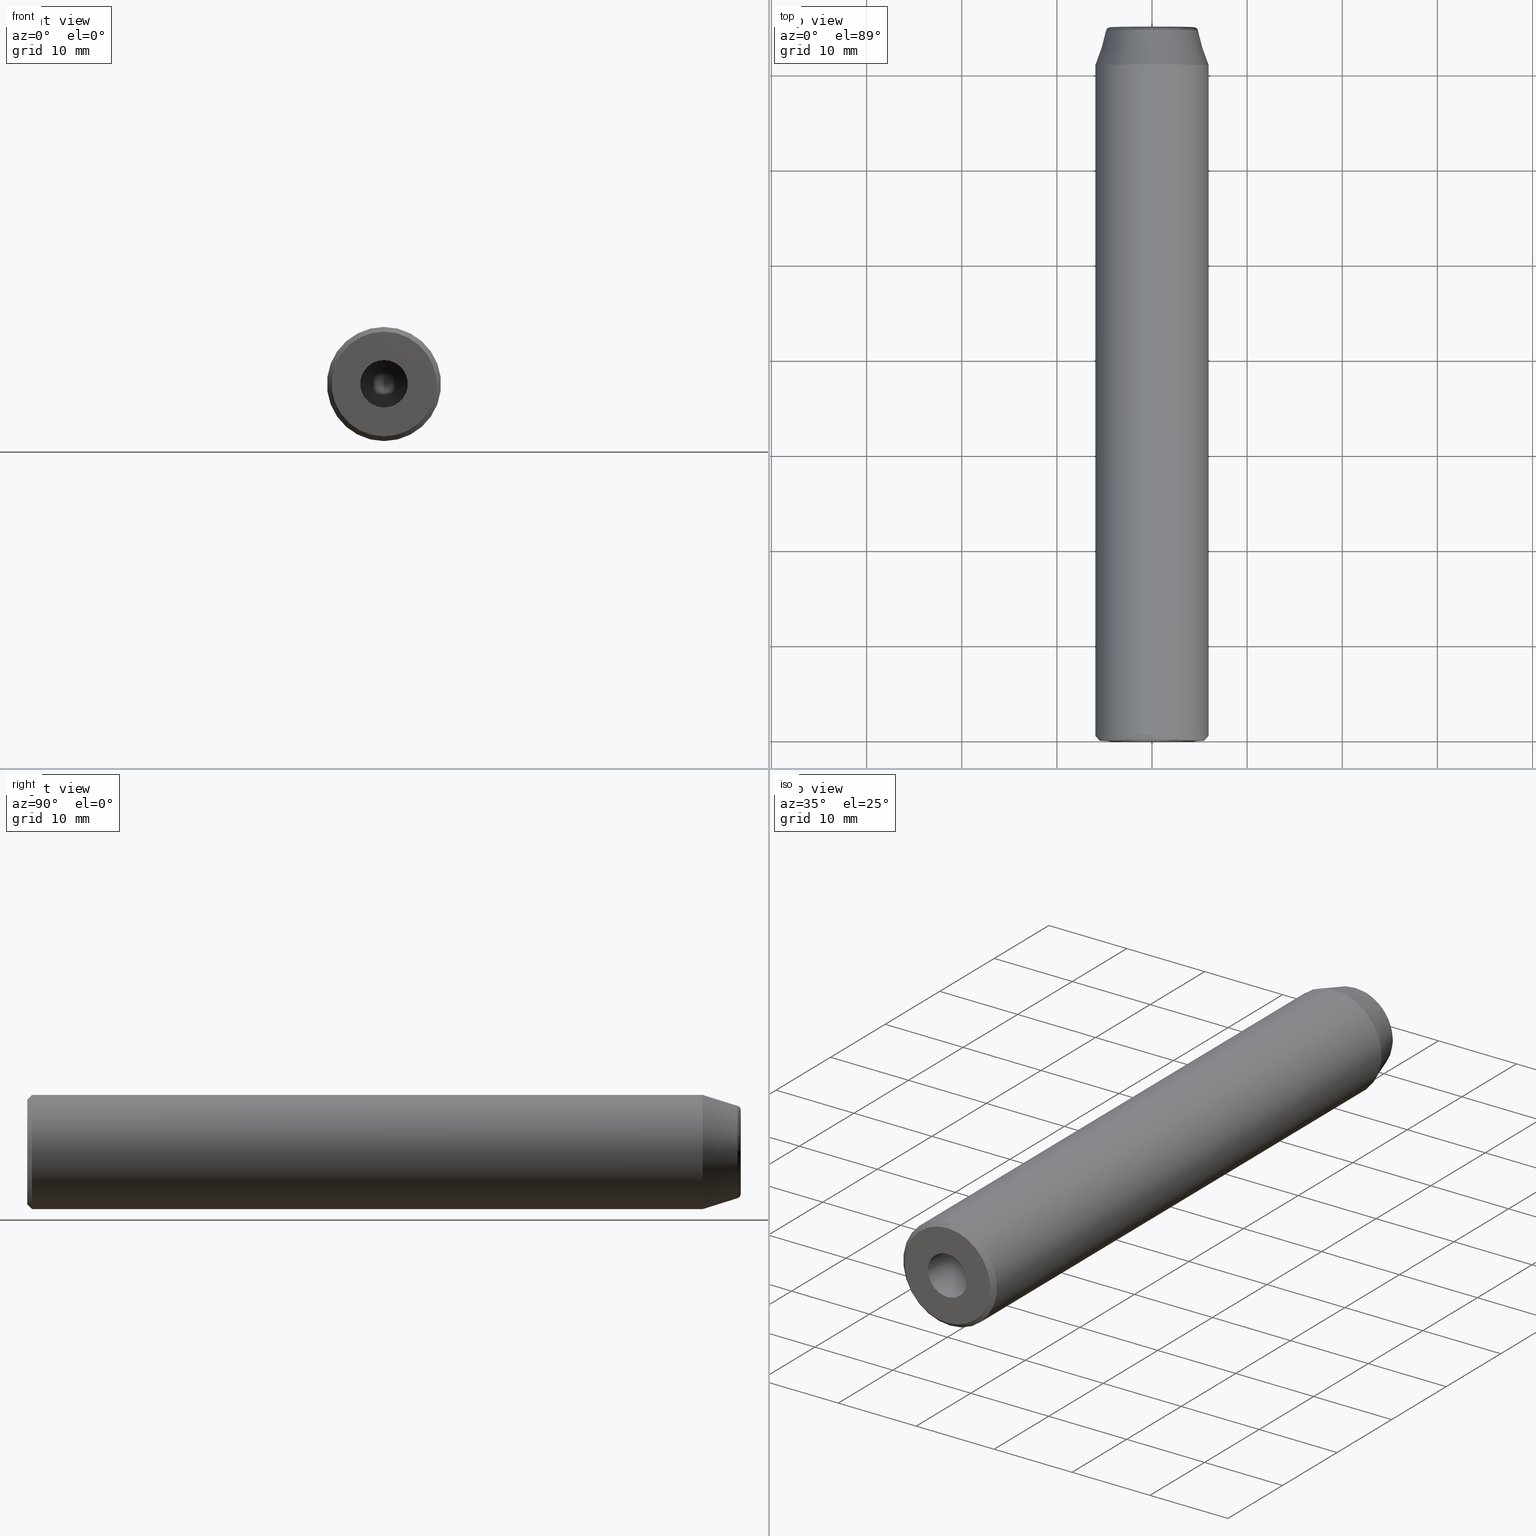
[diagram: canonical four-view strip — front | top / right | iso, engineering-drawing reading convention]
A machine part, canonical four-view strip (front | top / right | iso — engineering-drawing reading convention). The complete STEP part file that produces these views, byte-faithful:
ISO-10303-21;
HEADER;
FILE_DESCRIPTION (( 'STEP AP203' ),
    '1' );
FILE_NAME ('524210.STEP',
    '2024-06-12T02:01:58',
    ( 'Windows User' ),
    ( 'P R C' ),
    'SwSTEP 2.0',
    'SolidWorks 2020',
    '' );
FILE_SCHEMA (( 'CONFIG_CONTROL_DESIGN' ));
ENDSEC;

DATA;
#1 = AXIS2_PLACEMENT_3D ( 'NONE', #150, #300, #232 ) ;
#2 = ORIENTED_EDGE ( 'NONE', *, *, #70, .F. ) ;
#3 = DIRECTION ( 'NONE',  ( 1.000000000000000000, 0.000000000000000000, 0.000000000000000000 ) ) ;
#4 = DATE_TIME_ROLE ( 'classification_date' ) ;
#5 = ADVANCED_FACE ( 'NONE', ( #305, #85 ), #189, .T. ) ;
#6 = APPROVAL_STATUS ( 'not_yet_approved' ) ;
#7 = CARTESIAN_POINT ( 'NONE',  ( 0.000000000000000000, 0.5000000000000004441, 0.000000000000000000 ) ) ;
#8 = CIRCLE ( 'NONE', #188, 4.859644532331230948 ) ;
#9 = FACE_BOUND ( 'NONE', #113, .T. ) ;
#10 = FACE_OUTER_BOUND ( 'NONE', #219, .T. ) ;
#11 = DIRECTION ( 'NONE',  ( 0.000000000000000000, 0.000000000000000000, 1.000000000000000000 ) ) ;
#12 = CARTESIAN_POINT ( 'NONE',  ( 0.000000000000000000, 64.90000000000000568, 0.000000000000000000 ) ) ;
#13 = ORIENTED_EDGE ( 'NONE', *, *, #61, .F. ) ;
#14 = FACE_OUTER_BOUND ( 'NONE', #152, .T. ) ;
#15 = ORIENTED_EDGE ( 'NONE', *, *, #302, .T. ) ;
#16 = CC_DESIGN_SECURITY_CLASSIFICATION ( #169, ( #52 ) ) ;
#17 = CARTESIAN_POINT ( 'NONE',  ( 0.000000000000000000, 75.00000000000000000, 4.609233332234357938 ) ) ;
#18 = APPROVAL_STATUS ( 'not_yet_approved' ) ;
#19 = PERSON_AND_ORGANIZATION ( #264, #66 ) ;
#20 = CIRCLE ( 'NONE', #291, 5.500000000040472514 ) ;
#21 = APPROVAL_ROLE ( '' ) ;
#22 = ORIENTED_EDGE ( 'NONE', *, *, #168, .T. ) ;
#23 = EDGE_LOOP ( 'NONE', ( #179 ) ) ;
#24 =( NAMED_UNIT ( * ) PLANE_ANGLE_UNIT ( ) SI_UNIT ( $, .RADIAN. ) );
#25 = APPROVAL_DATE_TIME ( #115, #248 ) ;
#26 = PRODUCT_DEFINITION ( 'δ֪', '', #52, #160 ) ;
#27 = CIRCLE ( 'NONE', #36, 2.499999999999998224 ) ;
#28 = DATE_AND_TIME ( #99, #203 ) ;
#29 = EDGE_LOOP ( 'NONE', ( #22 ) ) ;
#30 = APPROVAL_ROLE ( '' ) ;
#31 = EDGE_CURVE ( 'NONE', #308, #308, #8, .T. ) ;
#32 = CARTESIAN_POINT ( 'NONE',  ( 5.483787781522369726E-16, 75.00000000000001421, -4.382404543304999400 ) ) ;
#33 = CARTESIAN_POINT ( 'NONE',  ( 0.000000000000000000, 74.64913749651297792, 4.859644532339705059 ) ) ;
#34 = APPROVAL ( #6, 'δָ��' ) ;
#35 = DIRECTION ( 'NONE',  ( 0.000000000000000000, -1.000000000000000000, 0.000000000000000000 ) ) ;
#36 = AXIS2_PLACEMENT_3D ( 'NONE', #246, #142, #247 ) ;
#37 = FACE_OUTER_BOUND ( 'NONE', #243, .T. ) ;
#38 = UNCERTAINTY_MEASURE_WITH_UNIT (LENGTH_MEASURE( 1.000000000000000082E-05 ), #239, 'distance_accuracy_value', 'NONE');
#39 = EDGE_CURVE ( 'NONE', #211, #211, #27, .T. ) ;
#40 = DIRECTION ( 'NONE',  ( -0.000000000000000000, -1.000000000000000000, -0.000000000000000000 ) ) ;
#41 = CARTESIAN_POINT ( 'NONE',  ( 0.000000000000000000, 0.000000000000000000, 0.000000000000000000 ) ) ;
#42 = DIRECTION ( 'NONE',  ( 0.000000000000000000, 1.000000000000000000, 0.000000000000000000 ) ) ;
#43 = LOCAL_TIME ( 10, 1, 58.00000000000000000, #96 ) ;
#44 = DIRECTION ( 'NONE',  ( 0.000000000000000000, 1.000000000000000000, 0.000000000000000000 ) ) ;
#45 = COORDINATED_UNIVERSAL_TIME_OFFSET ( 8, 0, .AHEAD. ) ;
#46 = EDGE_LOOP ( 'NONE', ( #131 ) ) ;
#47 = APPROVAL_STATUS ( 'not_yet_approved' ) ;
#48 = ADVANCED_FACE ( 'NONE', ( #231, #223 ), #254, .T. ) ;
#49 = VERTEX_POINT ( 'NONE', #284 ) ;
#50 = CARTESIAN_POINT ( 'NONE',  ( 0.000000000000000000, 74.64913749651032049, -4.859644532331230948 ) ) ;
#51 = CC_DESIGN_PERSON_AND_ORGANIZATION_ASSIGNMENT ( #218, #117, ( #52 ) ) ;
#52 = PRODUCT_DEFINITION_FORMATION_WITH_SPECIFIED_SOURCE ( '�κ�', '', #285, .NOT_KNOWN. ) ;
#53 = ORIENTED_EDGE ( 'NONE', *, *, #39, .F. ) ;
#54 = ORIENTED_EDGE ( 'NONE', *, *, #302, .F. ) ;
#55 = EDGE_LOOP ( 'NONE', ( #77 ) ) ;
#56 = AXIS2_PLACEMENT_3D ( 'NONE', #41, #124, #230 ) ;
#57 = DIRECTION ( 'NONE',  ( 0.000000000000000000, 0.000000000000000000, -1.000000000000000000 ) ) ;
#58 = PERSON_AND_ORGANIZATION ( #264, #66 ) ;
#59 = CARTESIAN_POINT ( 'NONE',  ( 0.000000000000000000, 75.00000000000001421, 0.000000000000000000 ) ) ;
#60 = DIRECTION ( 'NONE',  ( 0.000000000000000000, 0.000000000000000000, -1.000000000000000000 ) ) ;
#61 = EDGE_CURVE ( 'NONE', #89, #89, #20, .T. ) ;
#62 = CARTESIAN_POINT ( 'NONE',  ( 0.000000000000000000, 0.5000000001018634066, 0.000000000000000000 ) ) ;
#63 = CARTESIAN_POINT ( 'NONE',  ( 0.000000000000000000, 75.00000000000001421, 0.000000000000000000 ) ) ;
#64 = CARTESIAN_POINT ( 'NONE',  ( -9.583974353807441560, 74.86564103399577164, -4.791987176903720780 ) ) ;
#65 = DIRECTION ( 'NONE',  ( 0.000000000000000000, 0.000000000000000000, -1.000000000000000000 ) ) ;
#66 = ORGANIZATION ( 'δָ��', 'δָ��', '' ) ;
#67 = CARTESIAN_POINT ( 'NONE',  ( 9.583974353807441560, 74.86564103399577164, -4.791987176903720780 ) ) ;
#68 = CARTESIAN_POINT ( 'NONE',  ( -8.764809086609998801, 75.00000000000000000, 4.382404543304999400 ) ) ;
#69 = AXIS2_PLACEMENT_3D ( 'NONE', #59, #40, #128 ) ;
#70 = EDGE_CURVE ( 'NONE', #94, #74, #236, .T. ) ;
#71 = COORDINATED_UNIVERSAL_TIME_OFFSET ( 8, 0, .AHEAD. ) ;
#72 = MECHANICAL_CONTEXT ( 'NONE', #190, 'mechanical' ) ;
#73 = APPROVAL_DATE_TIME ( #122, #260 ) ;
#74 = VERTEX_POINT ( 'NONE', #273 ) ;
#75 = MANIFOLD_SOLID_BREP ( '���1', #221 ) ;
#76 = AXIS2_PLACEMENT_3D ( 'NONE', #275, #35, #149 ) ;
#77 = ORIENTED_EDGE ( 'NONE', *, *, #145, .T. ) ;
#78 = CIRCLE ( 'NONE', #92, 1.649999999999998579 ) ;
#79 = CC_DESIGN_PERSON_AND_ORGANIZATION_ASSIGNMENT ( #19, #216, ( #285 ) ) ;
#80 = CARTESIAN_POINT ( 'NONE',  ( 0.000000000000000000, 71.00000000007185008, 0.000000000000000000 ) ) ;
#81 = FACE_OUTER_BOUND ( 'NONE', #112, .T. ) ;
#82 = DIRECTION ( 'NONE',  ( 0.000000000000000000, 0.000000000000000000, 1.000000000000000000 ) ) ;
#83 = CARTESIAN_POINT ( 'NONE',  ( -8.764809086609998801, 75.00000000000000000, -4.382404543304999400 ) ) ;
#84 = CARTESIAN_POINT ( 'NONE',  ( -9.583974353807441560, 74.86564103399577164, 4.791987176903720780 ) ) ;
#85 = FACE_OUTER_BOUND ( 'NONE', #207, .T. ) ;
#86 = CARTESIAN_POINT ( 'NONE',  ( -9.218466664468715877, 75.00000000000001421, 4.609233332234357938 ) ) ;
#87 = CARTESIAN_POINT ( 'NONE',  ( 0.000000000000000000, 70.99999999999998579, -6.000000000000000888 ) ) ;
#88 = CONICAL_SURFACE ( 'NONE', #76, 2.499999999997726263, 1.029744258685237446 ) ;
#89 = VERTEX_POINT ( 'NONE', #158 ) ;
#90 = EDGE_CURVE ( 'NONE', #74, #94, #290, .T. ) ;
#91 =( NAMED_UNIT ( * ) SI_UNIT ( $, .STERADIAN. ) SOLID_ANGLE_UNIT ( ) );
#92 = AXIS2_PLACEMENT_3D ( 'NONE', #12, #178, #135 ) ;
#93 = EDGE_LOOP ( 'NONE', ( #114 ) ) ;
#94 = VERTEX_POINT ( 'NONE', #225 ) ;
#95 = APPLICATION_PROTOCOL_DEFINITION ( 'international standard', 'config_control_design', 1994, #190 ) ;
#96 = COORDINATED_UNIVERSAL_TIME_OFFSET ( 8, 0, .AHEAD. ) ;
#97 = ORIENTED_EDGE ( 'NONE', *, *, #270, .F. ) ;
#98 = ORIENTED_EDGE ( 'NONE', *, *, #90, .F. ) ;
#99 = CALENDAR_DATE ( 2024, 12, 6 ) ;
#100 = LOCAL_TIME ( 10, 1, 58.00000000000000000, #71 ) ;
#101 = PRODUCT_RELATED_PRODUCT_CATEGORY ( 'detail', '', ( #285 ) ) ;
#102 = AXIS2_PLACEMENT_3D ( 'NONE', #123, #130, #205 ) ;
#103 = FACE_OUTER_BOUND ( 'NONE', #257, .T. ) ;
#104 = FACE_BOUND ( 'NONE', #155, .T. ) ;
#105 = DIRECTION ( 'NONE',  ( 0.000000000000000000, -1.000000000000000000, 0.000000000000000000 ) ) ;
#106 = DIRECTION ( 'NONE',  ( 0.000000000000000000, 1.000000000000000000, 0.000000000000000000 ) ) ;
#107 = CARTESIAN_POINT ( 'NONE',  ( 0.000000000000000000, 74.86564103399577164, -4.791987176903720780 ) ) ;
#108 = FACE_OUTER_BOUND ( 'NONE', #162, .T. ) ;
#109 = CC_DESIGN_PERSON_AND_ORGANIZATION_ASSIGNMENT ( #185, #120, ( #52 ) ) ;
#110 = CARTESIAN_POINT ( 'NONE',  ( 0.000000000000000000, 1.040949779275260987E-16, -2.499999999999998224 ) ) ;
#111 = CIRCLE ( 'NONE', #148, 6.000000000000000888 ) ;
#112 = EDGE_LOOP ( 'NONE', ( #97 ) ) ;
#113 = EDGE_LOOP ( 'NONE', ( #53 ) ) ;
#114 = ORIENTED_EDGE ( 'NONE', *, *, #168, .F. ) ;
#115 = DATE_AND_TIME ( #265, #100 ) ;
#116 = PRODUCT_DEFINITION_SHAPE ( 'NONE', 'NONE',  #26 ) ;
#117 = PERSON_AND_ORGANIZATION_ROLE ( 'creator' ) ;
#118 = ORIENTED_EDGE ( 'NONE', *, *, #293, .F. ) ;
#119 = APPROVAL_DATE_TIME ( #28, #34 ) ;
#120 = PERSON_AND_ORGANIZATION_ROLE ( 'design_supplier' ) ;
#121 = LOCAL_TIME ( 10, 1, 58.00000000000000000, #222 ) ;
#122 = DATE_AND_TIME ( #187, #43 ) ;
#123 = CARTESIAN_POINT ( 'NONE',  ( 0.000000000000000000, 64.89999999989777280, 0.000000000000000000 ) ) ;
#124 = DIRECTION ( 'NONE',  ( -0.000000000000000000, -1.000000000000000000, -0.000000000000000000 ) ) ;
#125 = AXIS2_PLACEMENT_3D ( 'NONE', #63, #42, #202 ) ;
#126 = ADVANCED_FACE ( 'NONE', ( #103, #195 ), #307, .T. ) ;
#127 = CYLINDRICAL_SURFACE ( 'NONE', #56, 2.499999999999998224 ) ;
#128 = DIRECTION ( 'NONE',  ( 0.000000000000000000, 0.000000000000000000, 1.000000000000000000 ) ) ;
#129 = PLANE ( 'NONE',  #214 ) ;
#130 = DIRECTION ( 'NONE',  ( -0.000000000000000000, 1.000000000000000000, 0.000000000000000000 ) ) ;
#131 = ORIENTED_EDGE ( 'NONE', *, *, #31, .T. ) ;
#132 = CARTESIAN_POINT ( 'NONE',  ( 0.000000000000000000, 75.00000000000001421, 0.000000000000000000 ) ) ;
#133 = DATE_TIME_ROLE ( 'creation_date' ) ;
#134 = DIRECTION ( 'NONE',  ( 0.000000000000000000, 0.000000000000000000, 1.000000000000000000 ) ) ;
#135 = DIRECTION ( 'NONE',  ( 0.000000000000000000, 0.000000000000000000, 1.000000000000000000 ) ) ;
#136 = CARTESIAN_POINT ( 'NONE',  ( 0.000000000000000000, 11.00000000000000000, -2.499999999999998224 ) ) ;
#137 = CIRCLE ( 'NONE', #1, 2.499999999999998224 ) ;
#138 = CC_DESIGN_APPROVAL ( #260, ( #52 ) ) ;
#139 = CC_DESIGN_DATE_AND_TIME_ASSIGNMENT ( #296, #4, ( #169 ) ) ;
#140 = EDGE_LOOP ( 'NONE', ( #184, #261 ) ) ;
#141 = ADVANCED_FACE ( 'NONE', ( #10 ), #88, .F. ) ;
#142 = DIRECTION ( 'NONE',  ( -0.000000000000000000, -1.000000000000000000, -0.000000000000000000 ) ) ;
#143 = CC_DESIGN_APPROVAL ( #34, ( #169 ) ) ;
#144 = CARTESIAN_POINT ( 'NONE',  ( -8.764809086609997024, 75.00000000000000000, 4.382404543304999400 ) ) ;
#145 = EDGE_CURVE ( 'NONE', #286, #286, #111, .T. ) ;
#146 = CARTESIAN_POINT ( 'NONE',  ( 8.764809086609997024, 75.00000000000000000, -4.382404543304998512 ) ) ;
#147 = CARTESIAN_POINT ( 'NONE',  ( 0.000000000000000000, 74.86564103399577164, 4.791987176903720780 ) ) ;
#148 = AXIS2_PLACEMENT_3D ( 'NONE', #7, #228, #164 ) ;
#149 = DIRECTION ( 'NONE',  ( 0.000000000000000000, 0.000000000000000000, -1.000000000000000000 ) ) ;
#150 = CARTESIAN_POINT ( 'NONE',  ( 0.000000000000000000, 11.00000000000000000, 0.000000000000000000 ) ) ;
#151 =( GEOMETRIC_REPRESENTATION_CONTEXT ( 3 ) GLOBAL_UNCERTAINTY_ASSIGNED_CONTEXT ( ( #38 ) ) GLOBAL_UNIT_ASSIGNED_CONTEXT ( ( #239, #24, #91 ) ) REPRESENTATION_CONTEXT ( 'NONE', 'WORKASPACE' ) );
#152 = EDGE_LOOP ( 'NONE', ( #288 ) ) ;
#153 = CARTESIAN_POINT ( 'NONE',  ( 0.000000000000000000, 74.86564103399577164, 4.791987176903720780 ) ) ;
#154 = CARTESIAN_POINT ( 'NONE',  ( 0.000000000000000000, 75.00000000000001421, -4.382404543304999400 ) ) ;
#155 = EDGE_LOOP ( 'NONE', ( #268 ) ) ;
#156 = CARTESIAN_POINT ( 'NONE',  ( 0.000000000000000000, 0.5000000000000004441, -6.000000000000000888 ) ) ;
#157 = PERSON_AND_ORGANIZATION_ROLE ( 'creator' ) ;
#158 = CARTESIAN_POINT ( 'NONE',  ( 0.000000000000000000, 0.000000000000000000, 5.500000000040472514 ) ) ;
#159 = APPLICATION_PROTOCOL_DEFINITION ( 'international standard', 'config_control_design', 1994, #215 ) ;
#160 = DESIGN_CONTEXT ( 'detailed design', #215, 'design' ) ;
#161 = CC_DESIGN_PERSON_AND_ORGANIZATION_ASSIGNMENT ( #237, #157, ( #26 ) ) ;
#162 = EDGE_LOOP ( 'NONE', ( #13 ) ) ;
#163 = AXIS2_PLACEMENT_3D ( 'NONE', #181, #134, #3 ) ;
#164 = DIRECTION ( 'NONE',  ( 0.000000000000000000, 0.000000000000000000, -1.000000000000000000 ) ) ;
#165 = CARTESIAN_POINT ( 'NONE',  ( 0.000000000000000000, 75.00000000000001421, 4.382404543304999400 ) ) ;
#166 = CARTESIAN_POINT ( 'NONE',  ( 0.000000000000000000, 0.000000000000000000, 0.000000000000000000 ) ) ;
#167 = DIRECTION ( 'NONE',  ( 0.000000000000000000, -0.000000000000000000, 1.000000000000000000 ) ) ;
#168 = EDGE_CURVE ( 'NONE', #49, #49, #194, .T. ) ;
#169 = SECURITY_CLASSIFICATION ( '', '', #191 ) ;
#170 = CARTESIAN_POINT ( 'NONE',  ( 9.218466664468715877, 75.00000000000001421, -4.609233332234357938 ) ) ;
#171 = CARTESIAN_POINT ( 'NONE',  ( 9.218466664468715877, 75.00000000000001421, 4.609233332234357938 ) ) ;
#172 =( BOUNDED_SURFACE ( )  B_SPLINE_SURFACE ( 3, 3, ( 
 ( #226, #233, #303, #154, #83, #68, #298 ),
 ( #17, #171, #170, #278, #197, #86, #281 ),
 ( #147, #199, #67, #107, #64, #84, #153 ),
 ( #304, #251, #253, #201, #258, #174, #33 ) ),
 .UNSPECIFIED., .F., .T., .F. ) 
 B_SPLINE_SURFACE_WITH_KNOTS ( ( 4, 4 ),
 ( 4, 3, 4 ),
 ( 0.000000000000000000, 1.000000000000000000 ),
 ( 0.000000000000000000, 0.5000000000000000000, 1.000000000000000000 ),
 .UNSPECIFIED. ) 
 GEOMETRIC_REPRESENTATION_ITEM ( )  RATIONAL_B_SPLINE_SURFACE ( (
 ( 1.000000000000000000, 0.3333333333333333148, 0.3333333333333333148, 1.000000000000000000, 0.3333333333333333148, 0.3333333333333333148, 1.000000000000000000),
 ( 0.8704604635415936764, 0.2901534878471978551, 0.2901534878471978551, 0.8704604635415936764, 0.2901534878471978551, 0.2901534878471978551, 0.8704604635415936764),
 ( 0.8704604635415936764, 0.2901534878471978551, 0.2901534878471978551, 0.8704604635415936764, 0.2901534878471978551, 0.2901534878471978551, 0.8704604635415936764),
 ( 1.000000000000000000, 0.3333333333333333148, 0.3333333333333333148, 1.000000000000000000, 0.3333333333333333148, 0.3333333333333333148, 1.000000000000000000) ) ) 
 REPRESENTATION_ITEM ( '' )  SURFACE ( )  );
#173 = CC_DESIGN_APPROVAL ( #248, ( #26 ) ) ;
#174 = CARTESIAN_POINT ( 'NONE',  ( -9.719289064679410117, 74.64913749651297792, 4.859644532339705059 ) ) ;
#175 = CARTESIAN_POINT ( 'NONE',  ( 0.000000000000000000, 74.64913749651032049, 0.000000000000000000 ) ) ;
#176 = DIRECTION ( 'NONE',  ( -0.000000000000000000, -1.000000000000000000, -0.000000000000000000 ) ) ;
#177 = ADVANCED_FACE ( 'NONE', ( #249 ), #242, .F. ) ;
#178 = DIRECTION ( 'NONE',  ( 0.000000000000000000, 1.000000000000000000, 0.000000000000000000 ) ) ;
#179 = ORIENTED_EDGE ( 'NONE', *, *, #293, .T. ) ;
#180 = ADVANCED_FACE ( 'NONE', ( #204, #37 ), #255, .F. ) ;
#181 = CARTESIAN_POINT ( 'NONE',  ( 0.000000000000000000, 0.000000000000000000, 0.000000000000000000 ) ) ;
#182 = ORIENTED_EDGE ( 'NONE', *, *, #39, .T. ) ;
#183 = DATE_AND_TIME ( #217, #295 ) ;
#184 = ORIENTED_EDGE ( 'NONE', *, *, #90, .T. ) ;
#185 = PERSON_AND_ORGANIZATION ( #264, #66 ) ;
#186 = ADVANCED_BREP_SHAPE_REPRESENTATION ( '524210', ( #75, #163 ), #151 ) ;
#187 = CALENDAR_DATE ( 2024, 12, 6 ) ;
#188 = AXIS2_PLACEMENT_3D ( 'NONE', #175, #282, #65 ) ;
#189 = CYLINDRICAL_SURFACE ( 'NONE', #209, 6.000000000000000888 ) ;
#190 = APPLICATION_CONTEXT ( 'configuration controlled 3d designs of mechanical parts and assemblies' ) ;
#191 = SECURITY_CLASSIFICATION_LEVEL ( 'unclassified' ) ;
#192 = AXIS2_PLACEMENT_3D ( 'NONE', #235, #176, #241 ) ;
#193 = CALENDAR_DATE ( 2024, 12, 6 ) ;
#194 = CIRCLE ( 'NONE', #69, 1.649999999999998579 ) ;
#195 = FACE_BOUND ( 'NONE', #46, .T. ) ;
#196 = CC_DESIGN_PERSON_AND_ORGANIZATION_ASSIGNMENT ( #292, #294, ( #169 ) ) ;
#197 = CARTESIAN_POINT ( 'NONE',  ( -9.218466664468715877, 75.00000000000001421, -4.609233332234357938 ) ) ;
#198 = DIRECTION ( 'NONE',  ( 0.000000000000000000, 1.000000000000000000, 0.000000000000000000 ) ) ;
#199 = CARTESIAN_POINT ( 'NONE',  ( 9.583974353807441560, 74.86564103399577164, 4.791987176903720780 ) ) ;
#200 = ADVANCED_FACE ( 'NONE', ( #301, #277 ), #172, .T. ) ;
#201 = CARTESIAN_POINT ( 'NONE',  ( 0.000000000000000000, 74.64913749651297792, -4.859644532339705059 ) ) ;
#202 = DIRECTION ( 'NONE',  ( 0.000000000000000000, -0.000000000000000000, 1.000000000000000000 ) ) ;
#203 = LOCAL_TIME ( 10, 1, 58.00000000000000000, #289 ) ;
#204 = FACE_OUTER_BOUND ( 'NONE', #93, .T. ) ;
#205 = DIRECTION ( 'NONE',  ( 0.000000000000000000, 0.000000000000000000, 1.000000000000000000 ) ) ;
#206 = DIRECTION ( 'NONE',  ( -0.000000000000000000, -1.000000000000000000, -0.000000000000000000 ) ) ;
#207 = EDGE_LOOP ( 'NONE', ( #15 ) ) ;
#208 = VERTEX_POINT ( 'NONE', #283 ) ;
#209 = AXIS2_PLACEMENT_3D ( 'NONE', #259, #206, #57 ) ;
#210 = PERSON_AND_ORGANIZATION ( #264, #66 ) ;
#211 = VERTEX_POINT ( 'NONE', #110 ) ;
#212 = ADVANCED_FACE ( 'NONE', ( #14, #104 ), #224, .T. ) ;
#213 = ORIENTED_EDGE ( 'NONE', *, *, #31, .F. ) ;
#214 = AXIS2_PLACEMENT_3D ( 'NONE', #166, #229, #167 ) ;
#215 = APPLICATION_CONTEXT ( 'configuration controlled 3d designs of mechanical parts and assemblies' ) ;
#216 = PERSON_AND_ORGANIZATION_ROLE ( 'design_owner' ) ;
#217 = CALENDAR_DATE ( 2024, 12, 6 ) ;
#218 = PERSON_AND_ORGANIZATION ( #264, #66 ) ;
#219 = EDGE_LOOP ( 'NONE', ( #220 ) ) ;
#220 = ORIENTED_EDGE ( 'NONE', *, *, #270, .T. ) ;
#221 = CLOSED_SHELL ( 'NONE', ( #141, #267, #287, #212, #5, #177, #180, #48, #200, #126 ) ) ;
#222 = COORDINATED_UNIVERSAL_TIME_OFFSET ( 8, 0, .AHEAD. ) ;
#223 = FACE_OUTER_BOUND ( 'NONE', #238, .T. ) ;
#224 = CONICAL_SURFACE ( 'NONE', #279, 6.000000000085492502, 0.7853981633406048601 ) ;
#225 = CARTESIAN_POINT ( 'NONE',  ( 5.483787781522369726E-16, 75.00000000000001421, -4.382404543304999400 ) ) ;
#226 = CARTESIAN_POINT ( 'NONE',  ( 0.000000000000000000, 75.00000000000001421, 4.382404543304999400 ) ) ;
#227 = AXIS2_PLACEMENT_3D ( 'NONE', #80, #105, #60 ) ;
#228 = DIRECTION ( 'NONE',  ( 0.000000000000000000, 1.000000000000000000, 0.000000000000000000 ) ) ;
#229 = DIRECTION ( 'NONE',  ( 0.000000000000000000, 1.000000000000000000, 0.000000000000000000 ) ) ;
#230 = DIRECTION ( 'NONE',  ( 0.000000000000000000, 0.000000000000000000, -1.000000000000000000 ) ) ;
#231 = FACE_BOUND ( 'NONE', #29, .T. ) ;
#232 = DIRECTION ( 'NONE',  ( 0.000000000000000000, 0.000000000000000000, -1.000000000000000000 ) ) ;
#233 = CARTESIAN_POINT ( 'NONE',  ( 8.764809086609998801, 75.00000000000000000, 4.382404543304999400 ) ) ;
#234 = VERTEX_POINT ( 'NONE', #136 ) ;
#235 = CARTESIAN_POINT ( 'NONE',  ( 0.000000000000000000, 70.99999999999998579, 0.000000000000000000 ) ) ;
#236 =( BOUNDED_CURVE ( )  B_SPLINE_CURVE ( 3, ( #299, #146, #252, #250 ),
 .UNSPECIFIED., .F., .F. ) 
 B_SPLINE_CURVE_WITH_KNOTS ( ( 4, 4 ),
 ( 0.000000000000000000, 1.000000000000000000 ),
 .UNSPECIFIED. ) 
 CURVE ( )  GEOMETRIC_REPRESENTATION_ITEM ( )  RATIONAL_B_SPLINE_CURVE ( ( 1.000000000000000000, 0.3333333333333333703, 0.3333333333333333703, 1.000000000000000000 ) ) 
 REPRESENTATION_ITEM ( '' )  );
#237 = PERSON_AND_ORGANIZATION ( #264, #66 ) ;
#238 = EDGE_LOOP ( 'NONE', ( #2, #98 ) ) ;
#239 =( LENGTH_UNIT ( ) NAMED_UNIT ( * ) SI_UNIT ( .MILLI., .METRE. ) );
#240 = APPROVAL_PERSON_ORGANIZATION ( #210, #248, #309 ) ;
#241 = DIRECTION ( 'NONE',  ( 0.000000000000000000, 0.000000000000000000, -1.000000000000000000 ) ) ;
#242 = CONICAL_SURFACE ( 'NONE', #102, 1.649999999870033207, 1.029744258665856727 ) ;
#243 = EDGE_LOOP ( 'NONE', ( #118 ) ) ;
#244 = EDGE_LOOP ( 'NONE', ( #182 ) ) ;
#245 = SHAPE_DEFINITION_REPRESENTATION ( #116, #186 ) ;
#246 = CARTESIAN_POINT ( 'NONE',  ( 0.000000000000000000, 1.040949779275260987E-16, 0.000000000000000000 ) ) ;
#247 = DIRECTION ( 'NONE',  ( 0.000000000000000000, 0.000000000000000000, -1.000000000000000000 ) ) ;
#248 = APPROVAL ( #18, 'δָ��' ) ;
#249 = FACE_OUTER_BOUND ( 'NONE', #23, .T. ) ;
#250 = CARTESIAN_POINT ( 'NONE',  ( 0.000000000000000000, 75.00000000000001421, 4.382404543304999400 ) ) ;
#251 = CARTESIAN_POINT ( 'NONE',  ( 9.719289064679410117, 74.64913749651297792, 4.859644532339705059 ) ) ;
#252 = CARTESIAN_POINT ( 'NONE',  ( 8.764809086609997024, 75.00000000000000000, 4.382404543304999400 ) ) ;
#253 = CARTESIAN_POINT ( 'NONE',  ( 9.719289064679410117, 74.64913749651297792, -4.859644532339705059 ) ) ;
#254 = PLANE ( 'NONE',  #125 ) ;
#255 = CYLINDRICAL_SURFACE ( 'NONE', #269, 1.649999999999998579 ) ;
#256 = CIRCLE ( 'NONE', #192, 6.000000000000000888 ) ;
#257 = EDGE_LOOP ( 'NONE', ( #54 ) ) ;
#258 = CARTESIAN_POINT ( 'NONE',  ( -9.719289064679410117, 74.64913749651297792, -4.859644532339705059 ) ) ;
#259 = CARTESIAN_POINT ( 'NONE',  ( 0.000000000000000000, 25.00000000000000000, 0.000000000000000000 ) ) ;
#260 = APPROVAL ( #47, 'δָ��' ) ;
#261 = ORIENTED_EDGE ( 'NONE', *, *, #70, .T. ) ;
#262 = PERSON_AND_ORGANIZATION ( #264, #66 ) ;
#263 = APPROVAL_PERSON_ORGANIZATION ( #58, #34, #30 ) ;
#264 = PERSON ( 'δָ��', 'δָ��', 'δָ��', ('δָ��'), ('δָ��'), ('δָ��') ) ;
#265 = CALENDAR_DATE ( 2024, 12, 6 ) ;
#266 = EDGE_LOOP ( 'NONE', ( #213 ) ) ;
#267 = ADVANCED_FACE ( 'NONE', ( #81, #276 ), #127, .F. ) ;
#268 = ORIENTED_EDGE ( 'NONE', *, *, #61, .T. ) ;
#269 = AXIS2_PLACEMENT_3D ( 'NONE', #132, #106, #274 ) ;
#270 = EDGE_CURVE ( 'NONE', #234, #234, #137, .T. ) ;
#271 = APPROVAL_PERSON_ORGANIZATION ( #262, #260, #21 ) ;
#272 = CARTESIAN_POINT ( 'NONE',  ( 0.000000000000000000, 0.000000000000000000, 0.000000000000000000 ) ) ;
#273 = CARTESIAN_POINT ( 'NONE',  ( 0.000000000000000000, 75.00000000000001421, 4.382404543304999400 ) ) ;
#274 = DIRECTION ( 'NONE',  ( 0.000000000000000000, 0.000000000000000000, 1.000000000000000000 ) ) ;
#275 = CARTESIAN_POINT ( 'NONE',  ( 0.000000000000000000, 11.00000000002410161, 0.000000000000000000 ) ) ;
#276 = FACE_OUTER_BOUND ( 'NONE', #244, .T. ) ;
#277 = FACE_OUTER_BOUND ( 'NONE', #266, .T. ) ;
#278 = CARTESIAN_POINT ( 'NONE',  ( 0.000000000000000000, 75.00000000000000000, -4.609233332234357938 ) ) ;
#279 = AXIS2_PLACEMENT_3D ( 'NONE', #62, #44, #11 ) ;
#280 = CC_DESIGN_DATE_AND_TIME_ASSIGNMENT ( #183, #133, ( #26 ) ) ;
#281 = CARTESIAN_POINT ( 'NONE',  ( 0.000000000000000000, 75.00000000000000000, 4.609233332234357938 ) ) ;
#282 = DIRECTION ( 'NONE',  ( 0.000000000000000000, -1.000000000000000000, 0.000000000000000000 ) ) ;
#283 = CARTESIAN_POINT ( 'NONE',  ( 0.000000000000000000, 64.90000000000000568, 1.649999999999998579 ) ) ;
#284 = CARTESIAN_POINT ( 'NONE',  ( 0.000000000000000000, 75.00000000000001421, 1.649999999999998579 ) ) ;
#285 = PRODUCT ( '524210', '524210', '', ( #72 ) ) ;
#286 = VERTEX_POINT ( 'NONE', #156 ) ;
#287 = ADVANCED_FACE ( 'NONE', ( #9, #108 ), #129, .F. ) ;
#288 = ORIENTED_EDGE ( 'NONE', *, *, #145, .F. ) ;
#289 = COORDINATED_UNIVERSAL_TIME_OFFSET ( 8, 0, .AHEAD. ) ;
#290 =( BOUNDED_CURVE ( )  B_SPLINE_CURVE ( 3, ( #165, #144, #297, #32 ),
 .UNSPECIFIED., .F., .F. ) 
 B_SPLINE_CURVE_WITH_KNOTS ( ( 4, 4 ),
 ( 0.000000000000000000, 1.000000000000000000 ),
 .UNSPECIFIED. ) 
 CURVE ( )  GEOMETRIC_REPRESENTATION_ITEM ( )  RATIONAL_B_SPLINE_CURVE ( ( 1.000000000000000000, 0.3333333333333333703, 0.3333333333333333703, 1.000000000000000000 ) ) 
 REPRESENTATION_ITEM ( '' )  );
#291 = AXIS2_PLACEMENT_3D ( 'NONE', #272, #198, #82 ) ;
#292 = PERSON_AND_ORGANIZATION ( #264, #66 ) ;
#293 = EDGE_CURVE ( 'NONE', #208, #208, #78, .T. ) ;
#294 = PERSON_AND_ORGANIZATION_ROLE ( 'classification_officer' ) ;
#295 = LOCAL_TIME ( 10, 1, 58.00000000000000000, #45 ) ;
#296 = DATE_AND_TIME ( #193, #121 ) ;
#297 = CARTESIAN_POINT ( 'NONE',  ( -8.764809086609997024, 75.00000000000000000, -4.382404543305000288 ) ) ;
#298 = CARTESIAN_POINT ( 'NONE',  ( 0.000000000000000000, 75.00000000000001421, 4.382404543304999400 ) ) ;
#299 = CARTESIAN_POINT ( 'NONE',  ( 5.483787781522369726E-16, 75.00000000000001421, -4.382404543304999400 ) ) ;
#300 = DIRECTION ( 'NONE',  ( -0.000000000000000000, -1.000000000000000000, -0.000000000000000000 ) ) ;
#301 = FACE_OUTER_BOUND ( 'NONE', #140, .T. ) ;
#302 = EDGE_CURVE ( 'NONE', #306, #306, #256, .T. ) ;
#303 = CARTESIAN_POINT ( 'NONE',  ( 8.764809086609998801, 75.00000000000000000, -4.382404543304999400 ) ) ;
#304 = CARTESIAN_POINT ( 'NONE',  ( 0.000000000000000000, 74.64913749651297792, 4.859644532339705059 ) ) ;
#305 = FACE_OUTER_BOUND ( 'NONE', #55, .T. ) ;
#306 = VERTEX_POINT ( 'NONE', #87 ) ;
#307 = CONICAL_SURFACE ( 'NONE', #227, 5.999999999971805664, 0.3028848683740845149 ) ;
#308 = VERTEX_POINT ( 'NONE', #50 ) ;
#309 = APPROVAL_ROLE ( '' ) ;
ENDSEC;
END-ISO-10303-21;
